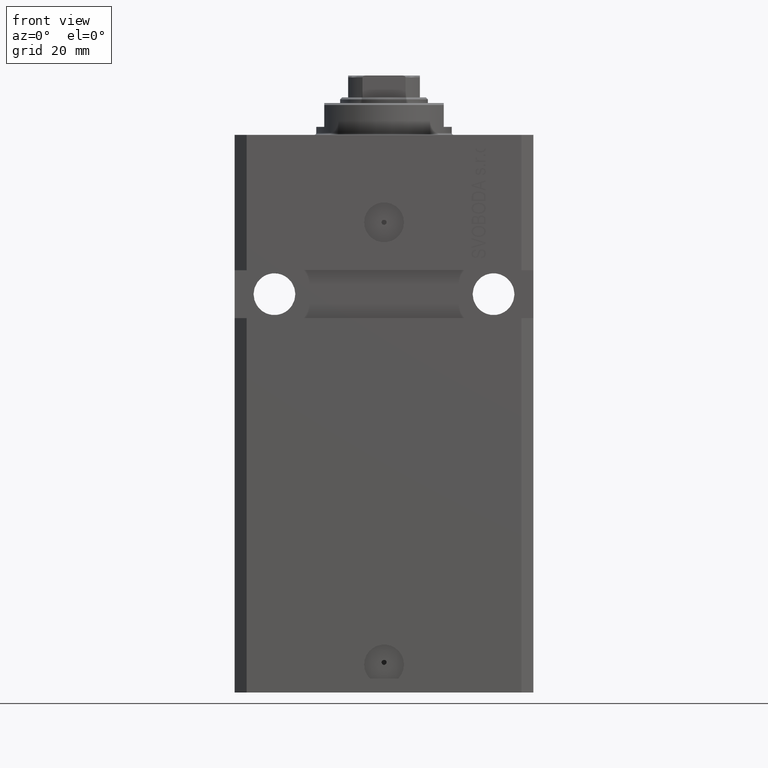
[diagram: clean part render]
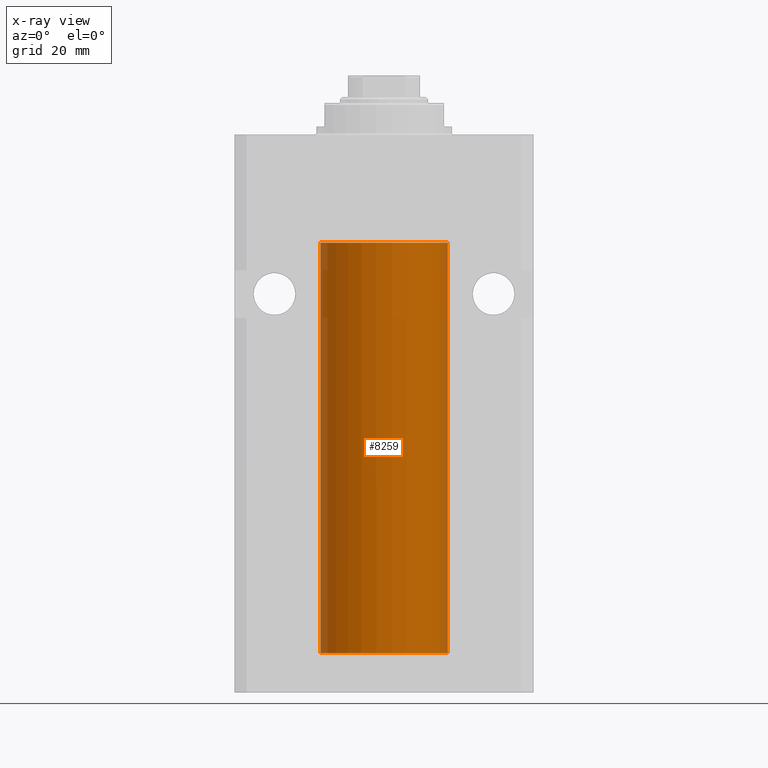
[diagram: x-ray — body ghosted, one internal face saturated and labeled with its STEP entity id]
A machine part, front view, then the same camera in x-ray: the body is ghosted and one INTERNAL B-rep face — a face not visible from any outside direction — is saturated and labeled: STEP entity #8259.
In plain terms, the highlighted cylindrical surface (partial cylindrical patch) has radius 16 mm, axis along (0, 0, 1).
Its self-contained STEP definition (entity closure, byte-faithful):
#166 = VERTEX_POINT ( 'NONE', #6407 ) ;
#285 = EDGE_CURVE ( 'NONE', #6399, #33930, #25333, .T. ) ;
#510 = AXIS2_PLACEMENT_3D ( 'NONE', #20437, #19737, #37493 ) ;
#1573 = CARTESIAN_POINT ( 'NONE',  ( 0.000000000000000000, 0.000000000000000000, -27.10000000000000142 ) ) ;
#2460 = CARTESIAN_POINT ( 'NONE',  ( -15.98779367741636648, -0.6248626626677442619, -128.1653963198503732 ) ) ;
#2892 = LINE ( 'NONE', #38884, #7566 ) ;
#3948 = CARTESIAN_POINT ( 'NONE',  ( -16.00000000000013145, 3.685127464164956467E-13, -128.6250000000034390 ) ) ;
#4027 = ORIENTED_EDGE ( 'NONE', *, *, #39032, .T. ) ;
#5691 = CARTESIAN_POINT ( 'NONE',  ( 16.00000000000000000, 0.000000000000000000, -130.0999999999999943 ) ) ;
#6242 = CARTESIAN_POINT ( 'NONE',  ( -15.98778295664474491, -0.6251369050462284305, -127.8356432545786561 ) ) ;
#6399 = VERTEX_POINT ( 'NONE', #10384 ) ;
#6407 = CARTESIAN_POINT ( 'NONE',  ( -16.00000000000000000, 1.959434878635765131E-15, -130.0999999999999943 ) ) ;
#6638 = CARTESIAN_POINT ( 'NONE',  ( -16.00000000000000000, 1.959434878635765131E-15, -130.0999999999999943 ) ) ;
#6833 = ORIENTED_EDGE ( 'NONE', *, *, #20696, .T. ) ;
#7282 = EDGE_CURVE ( 'NONE', #27028, #43352, #40205, .T. ) ;
#7531 = CARTESIAN_POINT ( 'NONE',  ( 16.00000000000000000, 0.000000000000000000, -130.0999999999999943 ) ) ;
#7566 = VECTOR ( 'NONE', #31305, 1000.000000000000000 ) ;
#8259 = ADVANCED_FACE ( 'NONE', ( #16416 ), #27066, .F. ) ;
#8998 = AXIS2_PLACEMENT_3D ( 'NONE', #31117, #45548, #13125 ) ;
#9005 = EDGE_CURVE ( 'NONE', #33930, #43352, #42083, .T. ) ;
#9331 = CARTESIAN_POINT ( 'NONE',  ( -16.00000000000013145, 3.685127464164956467E-13, -128.6250000000034390 ) ) ;
#10384 = CARTESIAN_POINT ( 'NONE',  ( -16.00000000000000000, -1.314639473218082033E-14, -127.3749999999999858 ) ) ;
#10895 = ORIENTED_EDGE ( 'NONE', *, *, #285, .T. ) ;
#13125 = DIRECTION ( 'NONE',  ( 1.000000000000000000, 0.000000000000000000, 0.000000000000000000 ) ) ;
#16011 = DIRECTION ( 'NONE',  ( 1.000000000000000000, 0.000000000000000000, 0.000000000000000000 ) ) ;
#16018 = ORIENTED_EDGE ( 'NONE', *, *, #17770, .F. ) ;
#16416 = FACE_OUTER_BOUND ( 'NONE', #21293, .T. ) ;
#16680 = CARTESIAN_POINT ( 'NONE',  ( -15.99707459521409625, -0.3269651631532018987, -127.4429184892856028 ) ) ;
#17254 = ORIENTED_EDGE ( 'NONE', *, *, #7282, .F. ) ;
#17770 = EDGE_CURVE ( 'NONE', #166, #27028, #23368, .T. ) ;
#19126 = ORIENTED_EDGE ( 'NONE', *, *, #9005, .T. ) ;
#19737 = DIRECTION ( 'NONE',  ( -0.000000000000000000, -0.000000000000000000, 1.000000000000000000 ) ) ;
#20225 = CARTESIAN_POINT ( 'NONE',  ( -16.00000000000000000, -1.314639473218082033E-14, -127.3749999999999858 ) ) ;
#20437 = CARTESIAN_POINT ( 'NONE',  ( 0.000000000000000000, 0.000000000000000000, -130.0999999999999943 ) ) ;
#20695 = CARTESIAN_POINT ( 'NONE',  ( -16.00000000000000711, -0.1631344205875858155, -128.6250000000001705 ) ) ;
#20696 = EDGE_CURVE ( 'NONE', #166, #36176, #2892, .T. ) ;
#21157 = CARTESIAN_POINT ( 'NONE',  ( -15.99708815688950381, -0.3263115027448994510, -128.5574096919822580 ) ) ;
#21293 = EDGE_LOOP ( 'NONE', ( #16018, #6833, #4027, #10895, #19126, #17254 ) ) ;
#21673 = AXIS2_PLACEMENT_3D ( 'NONE', #1573, #31322, #16011 ) ;
#23368 = CIRCLE ( 'NONE', #8998, 16.00000000000000000 ) ;
#24258 = CARTESIAN_POINT ( 'NONE',  ( -16.00000000000000000, -0.1651602165840369285, -127.3749999999999858 ) ) ;
#25152 = CARTESIAN_POINT ( 'NONE',  ( 16.00000000000000000, 0.000000000000000000, -27.10000000000000142 ) ) ;
#25333 = LINE ( 'NONE', #6638, #25942 ) ;
#25942 = VECTOR ( 'NONE', #29341, 1000.000000000000000 ) ;
#27028 = VERTEX_POINT ( 'NONE', #5691 ) ;
#27066 = CYLINDRICAL_SURFACE ( 'NONE', #510, 16.00000000000000000 ) ;
#27104 = B_SPLINE_CURVE_WITH_KNOTS ( 'NONE', 3,
 ( #9331, #20695, #21157, #35128, #2460, #6242, #35359, #16680, #24258, #20225 ),
 .UNSPECIFIED., .F., .F.,
 ( 4, 2, 2, 2, 4 ),
 ( 0.001954221322144799027, 0.002442665739568306450, 0.002931110156991814306, 0.003419554574415321728, 0.003907998991838829150 ),
 .UNSPECIFIED. ) ;
#29341 = DIRECTION ( 'NONE',  ( -0.000000000000000000, -0.000000000000000000, 1.000000000000000000 ) ) ;
#31117 = CARTESIAN_POINT ( 'NONE',  ( 0.000000000000000000, 0.000000000000000000, -130.0999999999999943 ) ) ;
#31305 = DIRECTION ( 'NONE',  ( -0.000000000000000000, -0.000000000000000000, 1.000000000000000000 ) ) ;
#31322 = DIRECTION ( 'NONE',  ( 0.000000000000000000, 0.000000000000000000, 1.000000000000000000 ) ) ;
#33930 = VERTEX_POINT ( 'NONE', #41233 ) ;
#35128 = CARTESIAN_POINT ( 'NONE',  ( -15.99071965633095793, -0.5569502390237165423, -128.3270950821868439 ) ) ;
#35270 = VECTOR ( 'NONE', #44218, 1000.000000000000000 ) ;
#35359 = CARTESIAN_POINT ( 'NONE',  ( -15.99069874693027948, -0.5575440858643410103, -127.6738242501145066 ) ) ;
#36176 = VERTEX_POINT ( 'NONE', #3948 ) ;
#37493 = DIRECTION ( 'NONE',  ( 1.000000000000000000, 0.000000000000000000, 0.000000000000000000 ) ) ;
#38884 = CARTESIAN_POINT ( 'NONE',  ( -16.00000000000000000, 1.959434878635765131E-15, -130.0999999999999943 ) ) ;
#39032 = EDGE_CURVE ( 'NONE', #36176, #6399, #27104, .T. ) ;
#40205 = LINE ( 'NONE', #7531, #35270 ) ;
#41233 = CARTESIAN_POINT ( 'NONE',  ( -16.00000000000000000, 1.959434878635765131E-15, -27.10000000000000142 ) ) ;
#42083 = CIRCLE ( 'NONE', #21673, 16.00000000000000000 ) ;
#43352 = VERTEX_POINT ( 'NONE', #25152 ) ;
#44218 = DIRECTION ( 'NONE',  ( -0.000000000000000000, -0.000000000000000000, 1.000000000000000000 ) ) ;
#45548 = DIRECTION ( 'NONE',  ( 0.000000000000000000, 0.000000000000000000, 1.000000000000000000 ) ) ;